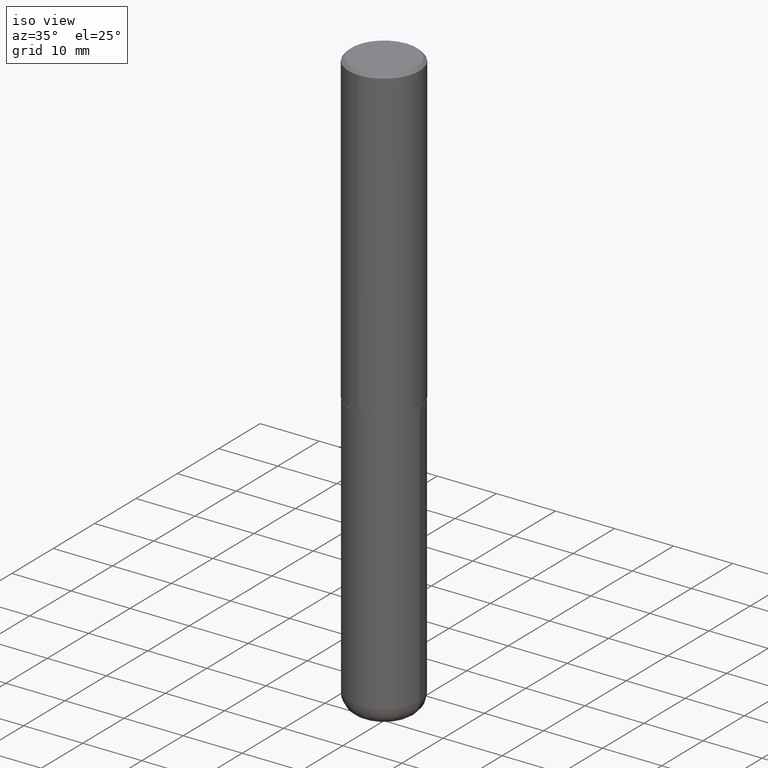
[diagram: clean part render]
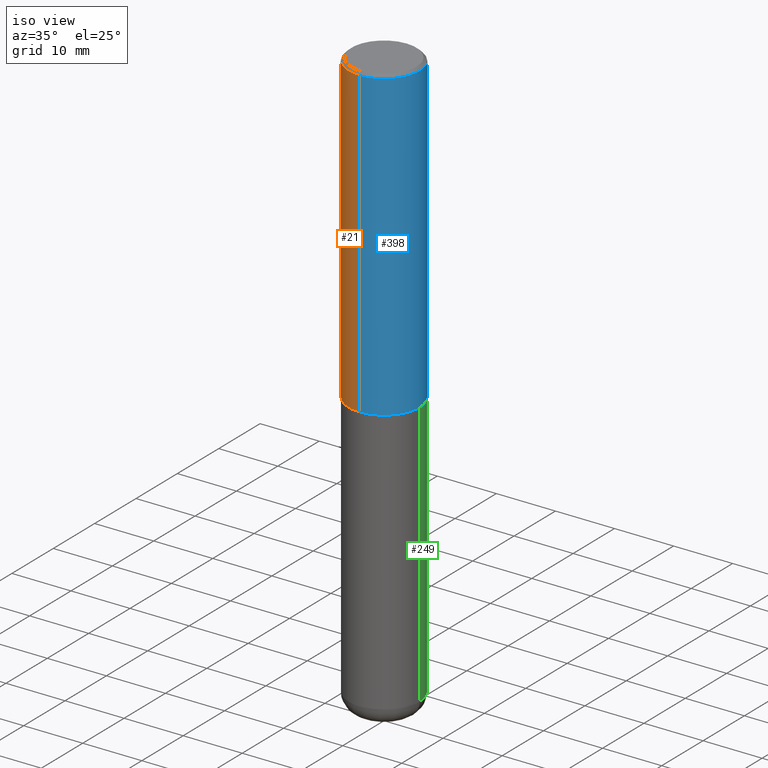
[diagram: same view with three faces highlighted in distinct colors, each labeled with its STEP entity id]
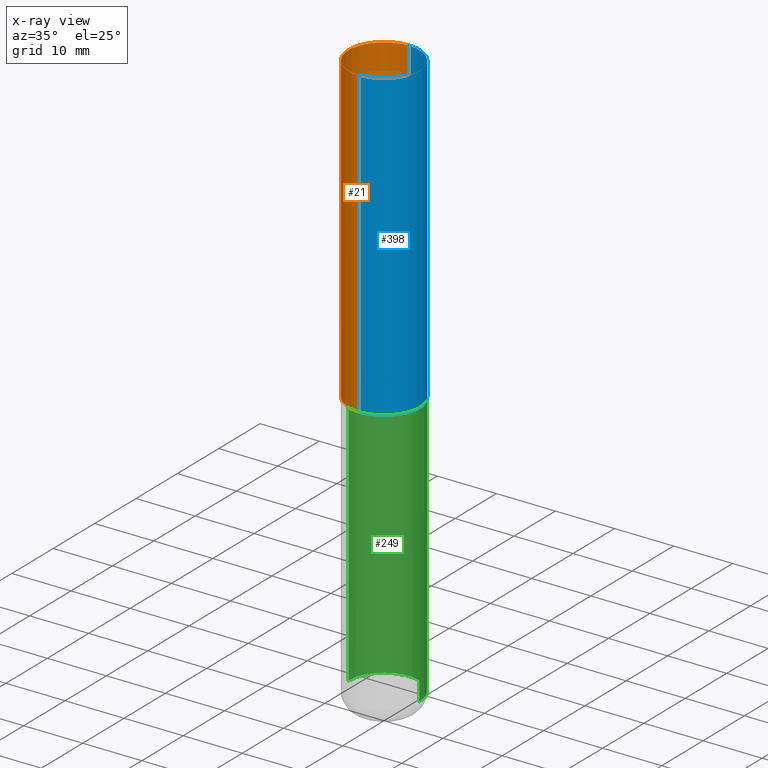
[diagram: x-ray of the same camera — body ghosted, the three highlighted faces saturated]
A machine part, iso view with three faces highlighted in distinct colors.
The next image is the same camera in x-ray (body ghosted, the three faces saturated) — at least one of them is partly hidden behind the body in this view.
Their STEP definitions:

[orange] entity #21 — the highlighted cylindrical surface (partial cylindrical patch) has radius 5.9995 mm, axis along (-0, 0, 1).
#21 = ADVANCED_FACE ( 'NONE', ( #339 ), #276, .T. ) ;
#36 = VERTEX_POINT ( 'NONE', #280 ) ;
#37 = CIRCLE ( 'NONE', #66, 0.2361999999999999933 ) ;
#49 = DIRECTION ( 'NONE',  ( -6.982962677686265922E-15, -1.000000000000000000, 3.491956515881168560E-15 ) ) ;
#66 = AXIS2_PLACEMENT_3D ( 'NONE', #411, #381, #337 ) ;
#70 = EDGE_CURVE ( 'NONE', #36, #303, #37, .T. ) ;
#92 = VECTOR ( 'NONE', #233, 39.37007874015748143 ) ;
#98 = LINE ( 'NONE', #325, #322 ) ;
#112 = VERTEX_POINT ( 'NONE', #408 ) ;
#113 = ORIENTED_EDGE ( 'NONE', *, *, #417, .F. ) ;
#115 = ORIENTED_EDGE ( 'NONE', *, *, #70, .F. ) ;
#132 = CARTESIAN_POINT ( 'NONE',  ( 1.678301941865383018E-15, 0.2361999999999931099, -2.046200000000001129 ) ) ;
#136 = ORIENTED_EDGE ( 'NONE', *, *, #413, .T. ) ;
#146 = DIRECTION ( 'NONE',  ( -2.445136991832956056E-29, 3.491956515881168560E-15, 1.000000000000000000 ) ) ;
#164 = CARTESIAN_POINT ( 'NONE',  ( -1.620449627073635079E-15, -0.2362000000000000766, -0.01999999999999922673 ) ) ;
#171 = CARTESIAN_POINT ( 'NONE',  ( 5.003239312688594889E-29, -7.145241422796046345E-15, -2.046200000000000241 ) ) ;
#176 = LINE ( 'NONE', #296, #92 ) ;
#221 = CARTESIAN_POINT ( 'NONE',  ( 0.000000000000000000, 0.000000000000000000, 0.000000000000000000 ) ) ;
#225 = DIRECTION ( 'NONE',  ( -2.445136991832956056E-29, 3.491956515881168560E-15, 1.000000000000000000 ) ) ;
#233 = DIRECTION ( 'NONE',  ( -2.445136991832956056E-29, 3.491956515881168560E-15, 1.000000000000000000 ) ) ;
#245 = DIRECTION ( 'NONE',  ( -2.445136991832956056E-29, 3.491956515881168560E-15, 1.000000000000000000 ) ) ;
#264 = VERTEX_POINT ( 'NONE', #132 ) ;
#276 = CYLINDRICAL_SURFACE ( 'NONE', #288, 0.2362000000000001321 ) ;
#280 = CARTESIAN_POINT ( 'NONE',  ( 1.649375784469496525E-15, 0.2361999999999999378, -0.02000000000000087472 ) ) ;
#288 = AXIS2_PLACEMENT_3D ( 'NONE', #221, #245, #49 ) ;
#296 = CARTESIAN_POINT ( 'NONE',  ( 1.678301941865357380E-15, 0.2362000000000001321, -8.248001290511324534E-16 ) ) ;
#302 = ORIENTED_EDGE ( 'NONE', *, *, #326, .T. ) ;
#303 = VERTEX_POINT ( 'NONE', #164 ) ;
#310 = AXIS2_PLACEMENT_3D ( 'NONE', #171, #146, #330 ) ;
#322 = VECTOR ( 'NONE', #225, 39.37007874015748143 ) ;
#325 = CARTESIAN_POINT ( 'NONE',  ( -1.649375784469496920E-15, -0.2362000000000001321, 8.248001290511324534E-16 ) ) ;
#326 = EDGE_CURVE ( 'NONE', #112, #303, #98, .T. ) ;
#330 = DIRECTION ( 'NONE',  ( -6.982962677686265922E-15, -1.000000000000000000, 3.469747663417773452E-15 ) ) ;
#337 = DIRECTION ( 'NONE',  ( -6.982962677686265922E-15, -1.000000000000000000, 3.487819265831411744E-15 ) ) ;
#339 = FACE_OUTER_BOUND ( 'NONE', #361, .T. ) ;
#361 = EDGE_LOOP ( 'NONE', ( #113, #136, #302, #115 ) ) ;
#381 = DIRECTION ( 'NONE',  ( -2.445136991832956056E-29, 3.491956515881168560E-15, 1.000000000000000000 ) ) ;
#390 = CIRCLE ( 'NONE', #310, 0.2362000000000002431 ) ;
#408 = CARTESIAN_POINT ( 'NONE',  ( -1.649375784469447616E-15, -0.2362000000000073763, -2.046199999999999353 ) ) ;
#411 = CARTESIAN_POINT ( 'NONE',  ( 4.890273983665924548E-31, -6.983913031762355363E-17, -0.02000000000000005246 ) ) ;
#413 = EDGE_CURVE ( 'NONE', #264, #112, #390, .T. ) ;
#417 = EDGE_CURVE ( 'NONE', #264, #36, #176, .T. ) ;

[blue] entity #398 — the highlighted cylindrical surface (partial cylindrical patch) has radius 5.9995 mm, axis along (-0, 0, 1).
#1 = DIRECTION ( 'NONE',  ( -2.445136991832956056E-29, 3.491956515881168560E-15, 1.000000000000000000 ) ) ;
#6 = DIRECTION ( 'NONE',  ( -6.982962677686265922E-15, -1.000000000000000000, 3.491956515881168560E-15 ) ) ;
#10 = DIRECTION ( 'NONE',  ( -6.982962677686265922E-15, -1.000000000000000000, 3.487819265831411744E-15 ) ) ;
#36 = VERTEX_POINT ( 'NONE', #280 ) ;
#40 = ORIENTED_EDGE ( 'NONE', *, *, #326, .F. ) ;
#75 = CYLINDRICAL_SURFACE ( 'NONE', #258, 0.2362000000000001321 ) ;
#77 = CARTESIAN_POINT ( 'NONE',  ( 0.000000000000000000, 0.000000000000000000, 0.000000000000000000 ) ) ;
#88 = EDGE_CURVE ( 'NONE', #112, #264, #129, .T. ) ;
#92 = VECTOR ( 'NONE', #233, 39.37007874015748143 ) ;
#98 = LINE ( 'NONE', #325, #322 ) ;
#112 = VERTEX_POINT ( 'NONE', #408 ) ;
#129 = CIRCLE ( 'NONE', #257, 0.2362000000000002431 ) ;
#132 = CARTESIAN_POINT ( 'NONE',  ( 1.678301941865383018E-15, 0.2361999999999931099, -2.046200000000001129 ) ) ;
#138 = ORIENTED_EDGE ( 'NONE', *, *, #405, .F. ) ;
#140 = CIRCLE ( 'NONE', #236, 0.2361999999999999933 ) ;
#141 = EDGE_LOOP ( 'NONE', ( #240, #212, #138, #40 ) ) ;
#164 = CARTESIAN_POINT ( 'NONE',  ( -1.620449627073635079E-15, -0.2362000000000000766, -0.01999999999999922673 ) ) ;
#176 = LINE ( 'NONE', #296, #92 ) ;
#180 = CARTESIAN_POINT ( 'NONE',  ( 5.003239312688594889E-29, -7.145241422796046345E-15, -2.046200000000000241 ) ) ;
#186 = DIRECTION ( 'NONE',  ( -6.982962677686265922E-15, -1.000000000000000000, 3.469747663417773452E-15 ) ) ;
#200 = FACE_OUTER_BOUND ( 'NONE', #141, .T. ) ;
#206 = CARTESIAN_POINT ( 'NONE',  ( 4.890273983665924548E-31, -6.983913031762355363E-17, -0.02000000000000005246 ) ) ;
#212 = ORIENTED_EDGE ( 'NONE', *, *, #417, .T. ) ;
#225 = DIRECTION ( 'NONE',  ( -2.445136991832956056E-29, 3.491956515881168560E-15, 1.000000000000000000 ) ) ;
#233 = DIRECTION ( 'NONE',  ( -2.445136991832956056E-29, 3.491956515881168560E-15, 1.000000000000000000 ) ) ;
#236 = AXIS2_PLACEMENT_3D ( 'NONE', #206, #266, #10 ) ;
#240 = ORIENTED_EDGE ( 'NONE', *, *, #88, .T. ) ;
#257 = AXIS2_PLACEMENT_3D ( 'NONE', #180, #305, #186 ) ;
#258 = AXIS2_PLACEMENT_3D ( 'NONE', #77, #1, #6 ) ;
#264 = VERTEX_POINT ( 'NONE', #132 ) ;
#266 = DIRECTION ( 'NONE',  ( -2.445136991832956056E-29, 3.491956515881168560E-15, 1.000000000000000000 ) ) ;
#280 = CARTESIAN_POINT ( 'NONE',  ( 1.649375784469496525E-15, 0.2361999999999999378, -0.02000000000000087472 ) ) ;
#296 = CARTESIAN_POINT ( 'NONE',  ( 1.678301941865357380E-15, 0.2362000000000001321, -8.248001290511324534E-16 ) ) ;
#303 = VERTEX_POINT ( 'NONE', #164 ) ;
#305 = DIRECTION ( 'NONE',  ( -2.445136991832956056E-29, 3.491956515881168560E-15, 1.000000000000000000 ) ) ;
#322 = VECTOR ( 'NONE', #225, 39.37007874015748143 ) ;
#325 = CARTESIAN_POINT ( 'NONE',  ( -1.649375784469496920E-15, -0.2362000000000001321, 8.248001290511324534E-16 ) ) ;
#326 = EDGE_CURVE ( 'NONE', #112, #303, #98, .T. ) ;
#398 = ADVANCED_FACE ( 'NONE', ( #200 ), #75, .T. ) ;
#405 = EDGE_CURVE ( 'NONE', #303, #36, #140, .T. ) ;
#408 = CARTESIAN_POINT ( 'NONE',  ( -1.649375784469447616E-15, -0.2362000000000073763, -2.046199999999999353 ) ) ;
#417 = EDGE_CURVE ( 'NONE', #264, #36, #176, .T. ) ;

[green] entity #249 — the highlighted cylindrical surface (partial cylindrical patch) has radius 5.9995 mm, axis along (-0, 0, 1).
#23 = CARTESIAN_POINT ( 'NONE',  ( -0.2362000000000000210, -1.165531614304273447E-14, -3.818900000000000183 ) ) ;
#27 = DIRECTION ( 'NONE',  ( 1.000000000000000000, -6.982962677686266711E-15, 4.876176775795936353E-29 ) ) ;
#29 = LINE ( 'NONE', #382, #83 ) ;
#30 = EDGE_LOOP ( 'NONE', ( #147, #295, #86, #328 ) ) ;
#45 = CARTESIAN_POINT ( 'NONE',  ( -0.2361999999999999933, -8.562387399028531560E-15, -2.047200000000000131 ) ) ;
#53 = AXIS2_PLACEMENT_3D ( 'NONE', #291, #261, #416 ) ;
#64 = CIRCLE ( 'NONE', #53, 0.2361999999999999933 ) ;
#72 = VERTEX_POINT ( 'NONE', #23 ) ;
#73 = CIRCLE ( 'NONE', #308, 0.2362000000000000210 ) ;
#83 = VECTOR ( 'NONE', #319, 39.37007874015748143 ) ;
#86 = ORIENTED_EDGE ( 'NONE', *, *, #315, .F. ) ;
#102 = CARTESIAN_POINT ( 'NONE',  ( 0.2362000000000000210, -1.498299386937758423E-14, -3.818900000000000183 ) ) ;
#106 = EDGE_CURVE ( 'NONE', #320, #72, #73, .T. ) ;
#130 = LINE ( 'NONE', #160, #155 ) ;
#137 = CARTESIAN_POINT ( 'NONE',  ( 0.2361999999999999933, -8.797136381349184727E-15, -2.047200000000000131 ) ) ;
#147 = ORIENTED_EDGE ( 'NONE', *, *, #106, .T. ) ;
#153 = DIRECTION ( 'NONE',  ( -2.445468806185136597E-29, 3.491481338843145583E-15, 1.000000000000000000 ) ) ;
#155 = VECTOR ( 'NONE', #226, 39.37007874015748143 ) ;
#160 = CARTESIAN_POINT ( 'NONE',  ( 0.2361999999999999933, -1.649375784469496131E-15, 1.151752954443000088E-29 ) ) ;
#191 = DIRECTION ( 'NONE',  ( -2.445468806185136597E-29, 3.491481338843145583E-15, 1.000000000000000000 ) ) ;
#199 = CARTESIAN_POINT ( 'NONE',  ( 0.000000000000000000, 0.000000000000000000, 0.000000000000000000 ) ) ;
#216 = CARTESIAN_POINT ( 'NONE',  ( 9.339000823940418668E-29, -1.333361808490808928E-14, -3.818900000000000183 ) ) ;
#226 = DIRECTION ( 'NONE',  ( -2.445468806185136877E-29, 3.491481338843145188E-15, 1.000000000000000000 ) ) ;
#249 = ADVANCED_FACE ( 'NONE', ( #349 ), #414, .T. ) ;
#255 = EDGE_CURVE ( 'NONE', #320, #368, #130, .T. ) ;
#261 = DIRECTION ( 'NONE',  ( -2.445468806185136597E-29, 3.491481338843145583E-15, 1.000000000000000000 ) ) ;
#283 = EDGE_CURVE ( 'NONE', #72, #397, #29, .T. ) ;
#291 = CARTESIAN_POINT ( 'NONE',  ( 5.006363740022212241E-29, -7.147760596879688202E-15, -2.047200000000000131 ) ) ;
#295 = ORIENTED_EDGE ( 'NONE', *, *, #283, .T. ) ;
#308 = AXIS2_PLACEMENT_3D ( 'NONE', #216, #153, #344 ) ;
#315 = EDGE_CURVE ( 'NONE', #368, #397, #64, .T. ) ;
#319 = DIRECTION ( 'NONE',  ( -2.445468806185136877E-29, 3.491481338843145188E-15, 1.000000000000000000 ) ) ;
#320 = VERTEX_POINT ( 'NONE', #102 ) ;
#328 = ORIENTED_EDGE ( 'NONE', *, *, #255, .F. ) ;
#344 = DIRECTION ( 'NONE',  ( 1.000000000000000000, -6.982962677686264344E-15, 0.000000000000000000 ) ) ;
#349 = FACE_OUTER_BOUND ( 'NONE', #30, .T. ) ;
#351 = AXIS2_PLACEMENT_3D ( 'NONE', #199, #191, #27 ) ;
#368 = VERTEX_POINT ( 'NONE', #137 ) ;
#382 = CARTESIAN_POINT ( 'NONE',  ( -0.2361999999999999933, 1.678301941865356591E-15, -1.161852468318208757E-29 ) ) ;
#397 = VERTEX_POINT ( 'NONE', #45 ) ;
#414 = CYLINDRICAL_SURFACE ( 'NONE', #351, 0.2361999999999999933 ) ;
#416 = DIRECTION ( 'NONE',  ( 1.000000000000000000, -6.982962677686265133E-15, 0.000000000000000000 ) ) ;